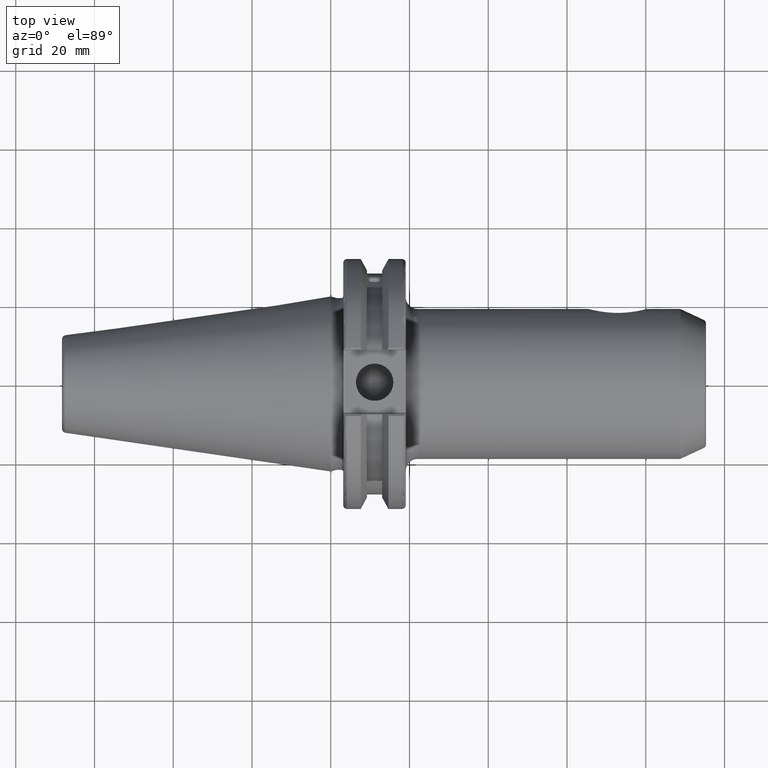
[diagram: clean part render]
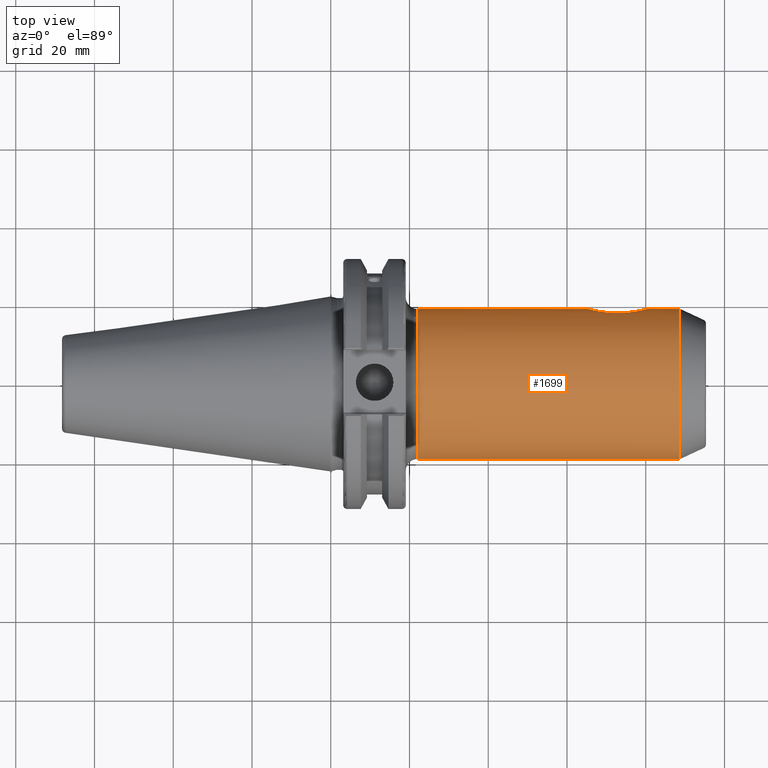
[diagram: same view with one face highlighted and labeled with its STEP entity id]
A machine part, top view. The second image highlights one B-rep face of the part: STEP entity #1699.
In plain terms, the highlighted cylindrical surface (bore or boss wall) has radius 19.05 mm, axis along (1, 0, 0).
Its self-contained STEP definition (entity closure, byte-faithful):
#62=FACE_BOUND('',#229,.T.);
#137=FACE_OUTER_BOUND('',#228,.T.);
#228=EDGE_LOOP('',(#1177,#1178,#1179,#1180,#1181,#1182,#1183,#1184));
#229=EDGE_LOOP('',(#1185,#1186));
#325=B_SPLINE_CURVE_WITH_KNOTS('',3,(#2599,#2600,#2601,#2602,#2603,#2604,
#2605,#2606,#2607,#2608,#2609,#2610,#2611,#2612,#2613,#2614,#2615,#2616,
#2617,#2618,#2619,#2620,#2621,#2622,#2623,#2624),.UNSPECIFIED.,.F.,.F.,
(4,2,2,2,2,2,2,2,2,2,2,2,4),(0.,0.25872999523386,0.51745999046772,0.786848665459811,
1.0562373404519,1.32562601544399,1.59501469043609,1.85374468566995,2.11247468090381,
2.37120467613766,2.62993467137152,2.89932334636362,3.16871202135571),
 .UNSPECIFIED.);
#326=B_SPLINE_CURVE_WITH_KNOTS('',3,(#2625,#2626,#2627,#2628,#2629,#2630,
#2631,#2632,#2633,#2634),.UNSPECIFIED.,.F.,.F.,(4,2,2,2,4),(3.16871202135571,
3.4381006963478,3.70748937133989,3.96621936657375,4.22494936180761),
 .UNSPECIFIED.);
#361=LINE('',#2685,#453);
#453=VECTOR('',#2092,19.05);
#563=CIRCLE('',#1829,19.05);
#564=CIRCLE('',#1830,19.05);
#565=CIRCLE('',#1831,19.05);
#566=CIRCLE('',#1833,19.05);
#567=CIRCLE('',#1834,19.05);
#568=CIRCLE('',#1835,19.05);
#659=VERTEX_POINT('',#2596);
#660=VERTEX_POINT('',#2598);
#676=VERTEX_POINT('',#2676);
#677=VERTEX_POINT('',#2678);
#678=VERTEX_POINT('',#2680);
#679=VERTEX_POINT('',#2684);
#680=VERTEX_POINT('',#2686);
#681=VERTEX_POINT('',#2688);
#854=EDGE_CURVE('',#660,#659,#325,.T.);
#855=EDGE_CURVE('',#659,#660,#326,.T.);
#876=EDGE_CURVE('',#676,#677,#563,.T.);
#877=EDGE_CURVE('',#677,#678,#564,.T.);
#878=EDGE_CURVE('',#678,#676,#565,.T.);
#879=EDGE_CURVE('',#677,#679,#361,.T.);
#880=EDGE_CURVE('',#680,#679,#566,.T.);
#881=EDGE_CURVE('',#681,#680,#567,.T.);
#882=EDGE_CURVE('',#679,#681,#568,.T.);
#1177=ORIENTED_EDGE('',*,*,#878,.F.);
#1178=ORIENTED_EDGE('',*,*,#877,.F.);
#1179=ORIENTED_EDGE('',*,*,#879,.T.);
#1180=ORIENTED_EDGE('',*,*,#880,.F.);
#1181=ORIENTED_EDGE('',*,*,#881,.F.);
#1182=ORIENTED_EDGE('',*,*,#882,.F.);
#1183=ORIENTED_EDGE('',*,*,#879,.F.);
#1184=ORIENTED_EDGE('',*,*,#876,.F.);
#1185=ORIENTED_EDGE('',*,*,#854,.T.);
#1186=ORIENTED_EDGE('',*,*,#855,.T.);
#1664=CYLINDRICAL_SURFACE('',#1832,19.05);
#1699=ADVANCED_FACE('',(#137,#62),#1664,.T.);
#1829=AXIS2_PLACEMENT_3D('',#2679,#2084,#2085);
#1830=AXIS2_PLACEMENT_3D('',#2681,#2086,#2087);
#1831=AXIS2_PLACEMENT_3D('',#2682,#2088,#2089);
#1832=AXIS2_PLACEMENT_3D('',#2683,#2090,#2091);
#1833=AXIS2_PLACEMENT_3D('',#2687,#2093,#2094);
#1834=AXIS2_PLACEMENT_3D('',#2689,#2095,#2096);
#1835=AXIS2_PLACEMENT_3D('',#2690,#2097,#2098);
#2084=DIRECTION('center_axis',(1.,0.,0.));
#2085=DIRECTION('ref_axis',(0.,-1.,1.83697019872103E-16));
#2086=DIRECTION('center_axis',(1.,0.,0.));
#2087=DIRECTION('ref_axis',(0.,-1.,1.83697019872103E-16));
#2088=DIRECTION('center_axis',(1.,0.,0.));
#2089=DIRECTION('ref_axis',(0.,-1.,1.83697019872103E-16));
#2090=DIRECTION('center_axis',(1.,0.,0.));
#2091=DIRECTION('ref_axis',(0.,1.,0.));
#2092=DIRECTION('',(-1.,0.,0.));
#2093=DIRECTION('center_axis',(-1.,0.,0.));
#2094=DIRECTION('ref_axis',(0.,-1.,-1.22464679914735E-16));
#2095=DIRECTION('center_axis',(-1.,0.,0.));
#2096=DIRECTION('ref_axis',(0.,-1.,-1.22464679914735E-16));
#2097=DIRECTION('center_axis',(-1.,0.,0.));
#2098=DIRECTION('ref_axis',(0.,-1.,-1.22464679914735E-16));
#2596=CARTESIAN_POINT('',(65.4,19.05,9.18485099360517E-16));
#2598=CARTESIAN_POINT('',(72.9,17.9446600199019,-6.39466001990195));
#2599=CARTESIAN_POINT('Ctrl Pts',(72.9,17.9446600199019,-6.39466001990195));
#2600=CARTESIAN_POINT('Ctrl Pts',(73.7624333174462,17.9446600199019,-6.39466001990195));
#2601=CARTESIAN_POINT('Ctrl Pts',(74.6908999732135,17.9951302384707,-6.25848866222518));
#2602=CARTESIAN_POINT('Ctrl Pts',(76.4382107275817,18.1841655377129,-5.68590571922338));
#2603=CARTESIAN_POINT('Ctrl Pts',(77.2573601418038,18.3203131416286,-5.2496303269466));
#2604=CARTESIAN_POINT('Ctrl Pts',(78.632403940588,18.5931214613171,-4.18481920476331));
#2605=CARTESIAN_POINT('Ctrl Pts',(79.2774500363895,18.7500533091295,-3.46783491366052));
#2606=CARTESIAN_POINT('Ctrl Pts',(80.1621005916612,18.980496163095,-1.8251450148922));
#2607=CARTESIAN_POINT('Ctrl Pts',(80.4,19.05,-0.897962249973639));
#2608=CARTESIAN_POINT('Ctrl Pts',(80.4,19.05,0.897962249973638));
#2609=CARTESIAN_POINT('Ctrl Pts',(80.1621005916612,18.980496163095,1.8251450148922));
#2610=CARTESIAN_POINT('Ctrl Pts',(79.2774500363895,18.7500533091295,3.46783491366052));
#2611=CARTESIAN_POINT('Ctrl Pts',(78.632403940588,18.5931214613171,4.18481920476331));
#2612=CARTESIAN_POINT('Ctrl Pts',(77.2573601418038,18.3203131416286,5.2496303269466));
#2613=CARTESIAN_POINT('Ctrl Pts',(76.4382107275817,18.1841655377129,5.68590571922338));
#2614=CARTESIAN_POINT('Ctrl Pts',(74.6908999732135,17.9951302384707,6.25848866222518));
#2615=CARTESIAN_POINT('Ctrl Pts',(73.7624333174462,17.9446600199019,6.39466001990195));
#2616=CARTESIAN_POINT('Ctrl Pts',(72.0375666825538,17.9446600199019,6.39466001990195));
#2617=CARTESIAN_POINT('Ctrl Pts',(71.1091000267865,17.9951302384707,6.25848866222518));
#2618=CARTESIAN_POINT('Ctrl Pts',(69.3617892724183,18.1841655377129,5.68590571922338));
#2619=CARTESIAN_POINT('Ctrl Pts',(68.5426398581962,18.3203131416286,5.2496303269466));
#2620=CARTESIAN_POINT('Ctrl Pts',(67.167596059412,18.5931214613171,4.18481920476331));
#2621=CARTESIAN_POINT('Ctrl Pts',(66.5225499636105,18.7500533091295,3.46783491366052));
#2622=CARTESIAN_POINT('Ctrl Pts',(65.6378994083388,18.980496163095,1.8251450148922));
#2623=CARTESIAN_POINT('Ctrl Pts',(65.4,19.05,0.89796224997364));
#2624=CARTESIAN_POINT('Ctrl Pts',(65.4,19.05,-4.16333634234434E-16));
#2625=CARTESIAN_POINT('Ctrl Pts',(65.4,19.05,1.2490009027033E-15));
#2626=CARTESIAN_POINT('Ctrl Pts',(65.4,19.05,-0.897962249973639));
#2627=CARTESIAN_POINT('Ctrl Pts',(65.6378994083388,18.980496163095,-1.82514501489221));
#2628=CARTESIAN_POINT('Ctrl Pts',(66.5225499636105,18.7500533091295,-3.46783491366052));
#2629=CARTESIAN_POINT('Ctrl Pts',(67.167596059412,18.5931214613171,-4.18481920476331));
#2630=CARTESIAN_POINT('Ctrl Pts',(68.5426398581962,18.3203131416286,-5.2496303269466));
#2631=CARTESIAN_POINT('Ctrl Pts',(69.3617892724183,18.1841655377129,-5.68590571922338));
#2632=CARTESIAN_POINT('Ctrl Pts',(71.1091000267865,17.9951302384707,-6.25848866222518));
#2633=CARTESIAN_POINT('Ctrl Pts',(72.0375666825538,17.9446600199019,-6.39466001990196));
#2634=CARTESIAN_POINT('Ctrl Pts',(72.9,17.9446600199019,-6.39466001990196));
#2676=CARTESIAN_POINT('',(88.5375592298029,-2.33295215237571E-15,19.05));
#2678=CARTESIAN_POINT('',(88.5375592298029,-19.05,-2.33295215237571E-15));
#2679=CARTESIAN_POINT('Origin',(88.5375592298029,0.,0.));
#2680=CARTESIAN_POINT('',(88.5375592298029,19.05,-1.16647607618785E-15));
#2681=CARTESIAN_POINT('Origin',(88.5375592298029,0.,0.));
#2682=CARTESIAN_POINT('Origin',(88.5375592298029,0.,0.));
#2683=CARTESIAN_POINT('Origin',(53.9046269462229,0.,0.));
#2684=CARTESIAN_POINT('',(22.05,-19.05,-2.33295215237571E-15));
#2685=CARTESIAN_POINT('',(53.9046269462229,-19.05,-2.33295215237571E-15));
#2686=CARTESIAN_POINT('',(22.05,-2.33295215237571E-15,-19.05));
#2687=CARTESIAN_POINT('Origin',(22.05,0.,0.));
#2688=CARTESIAN_POINT('',(22.05,19.05,0.));
#2689=CARTESIAN_POINT('Origin',(22.05,0.,0.));
#2690=CARTESIAN_POINT('Origin',(22.05,0.,0.));